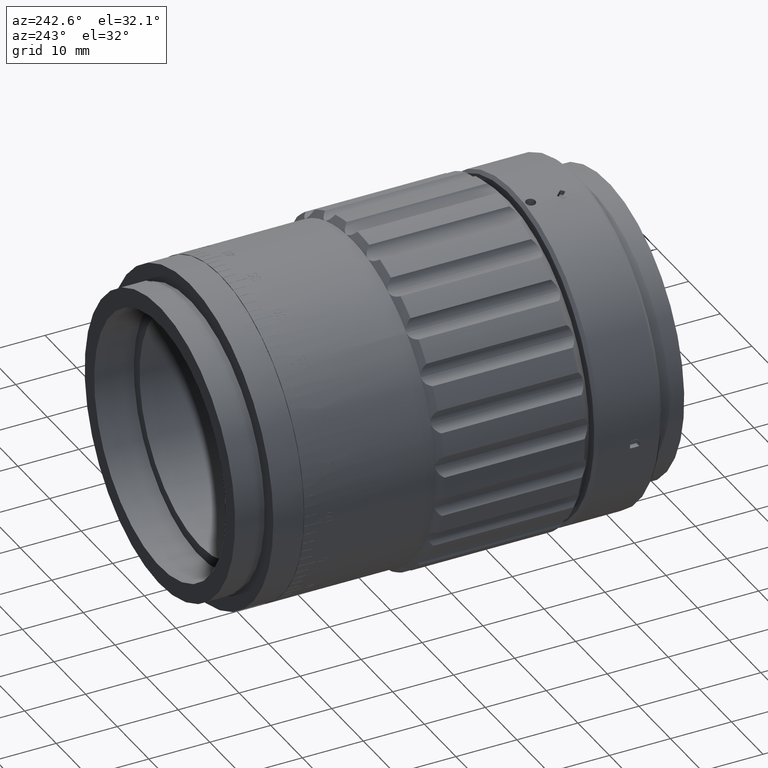
[diagram: clean part render]
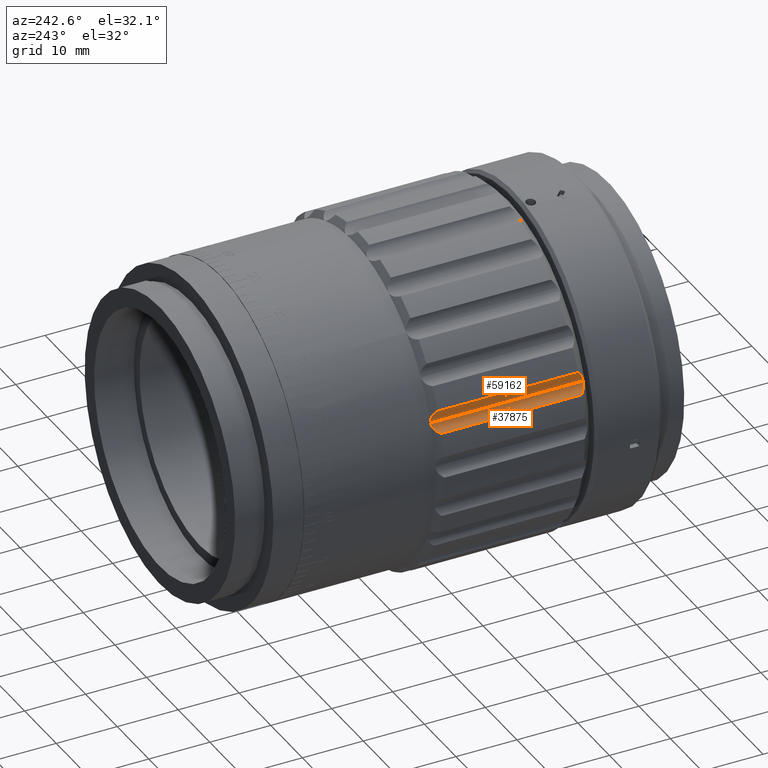
[diagram: same view with one multi-face feature highlighted, each face labeled with its STEP entity id]
A machine part, auxiliary view. The highlighted faces form ONE feature: a constant-radius fillet chain: 2 tangent blend faces with common blend radius 2 mm. The faces share edges in the B-rep.
Their STEP definitions:
[1] entity #37875 (Cylinder):
#547 = ORIENTED_EDGE ( 'NONE', *, *, #53774, .F. ) ;
#2243 = VERTEX_POINT ( 'NONE', #79891 ) ;
#3408 = CARTESIAN_POINT ( 'NONE',  ( 14.34841600653594900, -3.625167664365872800, -22.47063614641560700 ) ) ;
#4816 = CARTESIAN_POINT ( 'NONE',  ( 14.94273114514007800, -27.34283140253415200, -22.63423652695932700 ) ) ;
#4846 = CARTESIAN_POINT ( 'NONE',  ( 13.12500000000022400, -3.214578211897680200, -22.73316684934146900 ) ) ;
#5670 = CARTESIAN_POINT ( 'NONE',  ( 13.83508696474259900, -28.06476916104587400, -22.48436378671787800 ) ) ;
#8773 = EDGE_CURVE ( 'NONE', #20921, #2243, #17691, .T. ) ;
#10129 = CARTESIAN_POINT ( 'NONE',  ( 13.29152127467237000, -3.214578211897681100, -22.63702574658370300 ) ) ;
#10426 = CARTESIAN_POINT ( 'NONE',  ( 13.74359099961350200, -3.329652064939129900, -22.49974652857731900 ) ) ;
#12666 = CARTESIAN_POINT ( 'NONE',  ( 14.80571327722601900, -27.46488145372640600, -22.57841341308868600 ) ) ;
#14355 = B_SPLINE_CURVE_WITH_KNOTS ( 'NONE', 3,
 ( #23242, #10129, #83312, #10426, #69875, #76587, #36977, #3408, #70469, #70758, #17128, #63477 ),
 .UNSPECIFIED., .F., .F.,
 ( 4, 2, 2, 2, 2, 4 ),
 ( 0.002293443254639924600, 0.002866010891116038200, 0.003152294709354096700, 0.003438578527592154700, 0.004011146164068266100, 0.004583713800544377900 ),
 .UNSPECIFIED. ) ;
#17128 = CARTESIAN_POINT ( 'NONE',  ( 14.94275761573062400, -4.086351499841627300, -22.63425073669301200 ) ) ;
#17691 = LINE ( 'NONE', #44719, #62526 ) ;
#17904 = ORIENTED_EDGE ( 'NONE', *, *, #58150, .T. ) ;
#18212 = CARTESIAN_POINT ( 'NONE',  ( 13.47473048354753400, -28.17713089429708600, -22.57145315575239400 ) ) ;
#19087 = VECTOR ( 'NONE', #56548, 1000.000000000000000 ) ;
#20921 = VERTEX_POINT ( 'NONE', #21989 ) ;
#21989 = CARTESIAN_POINT ( 'NONE',  ( 15.07094563514969500, -4.214578211897617200, -22.70306361842741100 ) ) ;
#23242 = CARTESIAN_POINT ( 'NONE',  ( 13.12500000000022400, -3.214578211897680200, -22.73316684934146900 ) ) ;
#24398 = CARTESIAN_POINT ( 'NONE',  ( 14.12500000000023600, -2.714578211897591900, -24.46521765691034000 ) ) ;
#25008 = ORIENTED_EDGE ( 'NONE', *, *, #63809, .T. ) ;
#29766 = VERTEX_POINT ( 'NONE', #4846 ) ;
#30551 = DIRECTION ( 'NONE',  ( -0.5000000000000066600, 0.0000000000000000000, 0.8660254037844348200 ) ) ;
#31050 = CARTESIAN_POINT ( 'NONE',  ( 13.12500000000022200, -28.21457821189758900, -22.73316684934146900 ) ) ;
#31611 = LINE ( 'NONE', #62097, #19087 ) ;
#31943 = CARTESIAN_POINT ( 'NONE',  ( 13.29654098636880400, -28.20691269605203300, -22.64234901309466300 ) ) ;
#36977 = CARTESIAN_POINT ( 'NONE',  ( 14.09630680224505100, -3.484700486296736800, -22.46365720843557100 ) ) ;
#37875 = ADVANCED_FACE ( 'NONE', ( #80507 ), #39879, .F. ) ;
#38070 = CARTESIAN_POINT ( 'NONE',  ( 14.51084309510950400, -27.69403601927518800, -22.49683610694311800 ) ) ;
#39232 = CARTESIAN_POINT ( 'NONE',  ( 14.35069158910911600, -27.80261297679606600, -22.47081936244057200 ) ) ;
#39473 = B_SPLINE_CURVE_WITH_KNOTS ( 'NONE', 3,
 ( #65723, #4816, #12666, #38070, #39232, #51470, #72122, #5670, #58184, #71831, #18212, #31943, #59326, #64574 ),
 .UNSPECIFIED., .F., .F.,
 ( 4, 2, 2, 2, 2, 2, 4 ),
 ( 2.979895395338206000E-007, 0.0005735843058146311400, 0.001146870622089728600, 0.001433513780227274900, 0.001720156938364821400, 0.002006800096502367700, 0.002293443254639914200 ),
 .UNSPECIFIED. ) ;
#39879 = CYLINDRICAL_SURFACE ( 'NONE', #80070, 2.000000000000002700 ) ;
#44719 = CARTESIAN_POINT ( 'NONE',  ( 15.07094563514969500, -15.71457821189758900, -22.70306361842740700 ) ) ;
#45281 = DIRECTION ( 'NONE',  ( 0.0000000000000000000, -1.000000000000000000, 0.0000000000000000000 ) ) ;
#50364 = DIRECTION ( 'NONE',  ( 0.0000000000000000000, -1.000000000000000000, 0.0000000000000000000 ) ) ;
#51470 = CARTESIAN_POINT ( 'NONE',  ( 14.09729258263574700, -27.94395996729930300, -22.46362513803462600 ) ) ;
#52236 = EDGE_LOOP ( 'NONE', ( #547, #17904, #66734, #25008 ) ) ;
#53774 = EDGE_CURVE ( 'NONE', #29766, #73556, #31611, .T. ) ;
#56548 = DIRECTION ( 'NONE',  ( 0.0000000000000000000, -1.000000000000000000, 0.0000000000000000000 ) ) ;
#58150 = EDGE_CURVE ( 'NONE', #29766, #20921, #14355, .T. ) ;
#58184 = CARTESIAN_POINT ( 'NONE',  ( 13.74427288286541300, -28.09926723534073600, -22.49960830672932800 ) ) ;
#59326 = CARTESIAN_POINT ( 'NONE',  ( 13.20836514505607300, -28.21457821189759900, -22.68503596040245200 ) ) ;
#62097 = CARTESIAN_POINT ( 'NONE',  ( 13.12500000000022200, -2.714578211897591900, -22.73316684934146900 ) ) ;
#62526 = VECTOR ( 'NONE', #45281, 1000.000000000000000 ) ;
#63477 = CARTESIAN_POINT ( 'NONE',  ( 15.07094563514969500, -4.214578211897617200, -22.70306361842741100 ) ) ;
#63809 = EDGE_CURVE ( 'NONE', #2243, #73556, #39473, .T. ) ;
#64574 = CARTESIAN_POINT ( 'NONE',  ( 13.12500000000022200, -28.21457821189758900, -22.73316684934146900 ) ) ;
#65723 = CARTESIAN_POINT ( 'NONE',  ( 15.07094563514969500, -27.21457821189765600, -22.70306361842741100 ) ) ;
#66734 = ORIENTED_EDGE ( 'NONE', *, *, #8773, .T. ) ;
#69875 = CARTESIAN_POINT ( 'NONE',  ( 13.83428109412314400, -3.364064236255760200, -22.48448051987026700 ) ) ;
#70469 = CARTESIAN_POINT ( 'NONE',  ( 14.50958583724916200, -3.734194245562726600, -22.49654680344655900 ) ) ;
#70758 = CARTESIAN_POINT ( 'NONE',  ( 14.80555749630542200, -3.964103246584271400, -22.57831207111303600 ) ) ;
#71831 = CARTESIAN_POINT ( 'NONE',  ( 13.56429122097101600, -28.15530689563527400, -22.54319296394710300 ) ) ;
#72122 = CARTESIAN_POINT ( 'NONE',  ( 14.01117599504046200, -27.98722358619830400, -22.46649913771767300 ) ) ;
#73556 = VERTEX_POINT ( 'NONE', #31050 ) ;
#76587 = CARTESIAN_POINT ( 'NONE',  ( 14.01042454763606700, -3.441570337347438400, -22.46654070602517500 ) ) ;
#79891 = CARTESIAN_POINT ( 'NONE',  ( 15.07094563514969500, -27.21457821189765600, -22.70306361842741100 ) ) ;
#80070 = AXIS2_PLACEMENT_3D ( 'NONE', #24398, #50364, #30551 ) ;
#80507 = FACE_OUTER_BOUND ( 'NONE', #52236, .T. ) ;
#83312 = CARTESIAN_POINT ( 'NONE',  ( 13.47401003275885900, -3.245789140871166100, -22.56510966258554500 ) ) ;
[2] entity #59162 (Cylinder):
#741 = CARTESIAN_POINT ( 'NONE',  ( 12.12595701971794600, -4.214578211897617200, -24.40335358830735000 ) ) ;
#1537 = CARTESIAN_POINT ( 'NONE',  ( 12.15061308000440700, -27.46505317721099700, -24.11114494454793800 ) ) ;
#4494 = CARTESIAN_POINT ( 'NONE',  ( 12.12595701971794600, -4.214578211897617200, -24.40335358830735000 ) ) ;
#4576 = AXIS2_PLACEMENT_3D ( 'NONE', #28516, #8109, #68707 ) ;
#4846 = CARTESIAN_POINT ( 'NONE',  ( 13.12500000000022400, -3.214578211897680200, -22.73316684934146900 ) ) ;
#5668 = EDGE_CURVE ( 'NONE', #52840, #6256, #71047, .T. ) ;
#6256 = VERTEX_POINT ( 'NONE', #4494 ) ;
#7752 = CARTESIAN_POINT ( 'NONE',  ( 12.55448674485763600, -3.364387262749404300, -23.22371866839277000 ) ) ;
#8109 = DIRECTION ( 'NONE',  ( 0.0000000000000000000, -1.000000000000000000, 0.0000000000000000000 ) ) ;
#8536 = ORIENTED_EDGE ( 'NONE', *, *, #5668, .T. ) ;
#12495 = CYLINDRICAL_SURFACE ( 'NONE', #4576, 2.000000000000002700 ) ;
#13878 = CARTESIAN_POINT ( 'NONE',  ( 12.74083217870767500, -3.273849528159986600, -23.01861726366449200 ) ) ;
#14159 = CARTESIAN_POINT ( 'NONE',  ( 12.45097098984484600, -3.441932837596965100, -23.36728391745838000 ) ) ;
#15498 = CARTESIAN_POINT ( 'NONE',  ( 12.80495319060172900, -28.18336728292409500, -22.95138981050813200 ) ) ;
#19087 = VECTOR ( 'NONE', #56548, 1000.000000000000000 ) ;
#20835 = CARTESIAN_POINT ( 'NONE',  ( 12.28495461717061400, -3.626543446999199300, -23.66347315926427400 ) ) ;
#21065 = CARTESIAN_POINT ( 'NONE',  ( 12.40594440328848700, -27.94445593749853500, -23.43958839450117900 ) ) ;
#21705 = CARTESIAN_POINT ( 'NONE',  ( 12.61309592739464600, -3.329889188454534300, -23.15269362647148900 ) ) ;
#21777 = DIRECTION ( 'NONE',  ( -0.0000000000000000000, 1.000000000000000000, -0.0000000000000000000 ) ) ;
#27814 = CARTESIAN_POINT ( 'NONE',  ( 12.55499077404280300, -28.06509218753951300, -23.22307913054034500 ) ) ;
#28516 = CARTESIAN_POINT ( 'NONE',  ( 14.12500000000023600, -2.714578211897591900, -24.46521765691034000 ) ) ;
#29766 = VERTEX_POINT ( 'NONE', #4846 ) ;
#31050 = CARTESIAN_POINT ( 'NONE',  ( 13.12500000000022200, -28.21457821189758900, -22.73316684934146900 ) ) ;
#31611 = LINE ( 'NONE', #62097, #19087 ) ;
#34609 = VECTOR ( 'NONE', #21777, 1000.000000000000000 ) ;
#35294 = ORIENTED_EDGE ( 'NONE', *, *, #69798, .T. ) ;
#41528 = CARTESIAN_POINT ( 'NONE',  ( 12.22778811058613400, -27.69496217823254400, -23.81394333517175400 ) ) ;
#42094 = CARTESIAN_POINT ( 'NONE',  ( 12.12595701971794800, -27.21457821189765600, -24.40335358830734700 ) ) ;
#42527 = EDGE_LOOP ( 'NONE', ( #43041, #82558, #35294, #8536 ) ) ;
#43041 = ORIENTED_EDGE ( 'NONE', *, *, #58478, .T. ) ;
#47422 = CARTESIAN_POINT ( 'NONE',  ( 12.40542373931121000, -3.485196456495963000, -23.44042607016160700 ) ) ;
#47708 = CARTESIAN_POINT ( 'NONE',  ( 12.13045825504280600, -4.086325021261124800, -24.25790303709171200 ) ) ;
#48462 = B_SPLINE_CURVE_WITH_KNOTS ( 'NONE', 3,
 ( #741, #47708, #61669, #53829, #20835, #47422, #14159, #7752, #21705, #13878, #67513, #75037, #73898, #60516 ),
 .UNSPECIFIED., .F., .F.,
 ( 4, 2, 2, 2, 2, 2, 4 ),
 ( 2.979895395329111000E-007, 0.0005735843058146351500, 0.001146870622089736400, 0.001433513780227283400, 0.001720156938364830500, 0.002006800096502377300, 0.002293443254639924600 ),
 .UNSPECIFIED. ) ;
#52840 = VERTEX_POINT ( 'NONE', #67355 ) ;
#53774 = EDGE_CURVE ( 'NONE', #29766, #73556, #31611, .T. ) ;
#53829 = CARTESIAN_POINT ( 'NONE',  ( 12.22741002583338800, -3.735120404520084800, -23.81517680416621000 ) ) ;
#55316 = CARTESIAN_POINT ( 'NONE',  ( 12.12595701971794800, -15.71457821189758900, -24.40335358830734300 ) ) ;
#56548 = DIRECTION ( 'NONE',  ( 0.0000000000000000000, -1.000000000000000000, 0.0000000000000000000 ) ) ;
#58478 = EDGE_CURVE ( 'NONE', #6256, #29766, #48462, .T. ) ;
#59162 = ADVANCED_FACE ( 'NONE', ( #76137 ), #12495, .F. ) ;
#60516 = CARTESIAN_POINT ( 'NONE',  ( 13.12500000000022400, -3.214578211897680200, -22.73316684934146900 ) ) ;
#61669 = CARTESIAN_POINT ( 'NONE',  ( 12.15062295426949700, -3.964274970068866600, -24.11133052577042700 ) ) ;
#61894 = CARTESIAN_POINT ( 'NONE',  ( 12.45138271275732900, -27.98758608644784100, -23.36665392907032800 ) ) ;
#62097 = CARTESIAN_POINT ( 'NONE',  ( 13.12500000000022200, -2.714578211897591900, -22.73316684934146900 ) ) ;
#64400 = B_SPLINE_CURVE_WITH_KNOTS ( 'NONE', 3,
 ( #81136, #74983, #15498, #74702, #27814, #61894, #21065, #68302, #41528, #1537, #81987, #42094 ),
 .UNSPECIFIED., .F., .F.,
 ( 4, 2, 2, 2, 2, 4 ),
 ( 0.002293443254639914200, 0.002866010891116026500, 0.003152294709354085800, 0.003438578527592144700, 0.004011146164068255700, 0.004583713800544365700 ),
 .UNSPECIFIED. ) ;
#67355 = CARTESIAN_POINT ( 'NONE',  ( 12.12595701971794800, -27.21457821189765600, -24.40335358830734700 ) ) ;
#67513 = CARTESIAN_POINT ( 'NONE',  ( 12.81008659143862400, -3.252025529498175200, -22.95518548577672400 ) ) ;
#68302 = CARTESIAN_POINT ( 'NONE',  ( 12.28593373872519500, -27.80398875942939400, -23.66141083893499400 ) ) ;
#68707 = DIRECTION ( 'NONE',  ( -0.5000000000000066600, 0.0000000000000000000, 0.8660254037844348200 ) ) ;
#69798 = EDGE_CURVE ( 'NONE', #73556, #52840, #64400, .T. ) ;
#71047 = LINE ( 'NONE', #55316, #34609 ) ;
#73556 = VERTEX_POINT ( 'NONE', #31050 ) ;
#73898 = CARTESIAN_POINT ( 'NONE',  ( 13.04163485494438200, -3.214578211897681100, -22.78129773828050000 ) ) ;
#74702 = CARTESIAN_POINT ( 'NONE',  ( 12.61355657265231800, -28.09950435885614100, -23.15217220917692100 ) ) ;
#74983 = CARTESIAN_POINT ( 'NONE',  ( 12.95847872532807800, -28.21457821189758200, -22.82930795209923100 ) ) ;
#75037 = CARTESIAN_POINT ( 'NONE',  ( 12.96057895350946300, -3.222243727743242700, -22.83631678320349300 ) ) ;
#76137 = FACE_OUTER_BOUND ( 'NONE', #42527, .T. ) ;
#81136 = CARTESIAN_POINT ( 'NONE',  ( 13.12500000000022200, -28.21457821189758900, -22.73316684934146900 ) ) ;
#81987 = CARTESIAN_POINT ( 'NONE',  ( 12.13045732573787700, -27.34280492395362900, -24.25793306616241600 ) ) ;
#82558 = ORIENTED_EDGE ( 'NONE', *, *, #53774, .T. ) ;